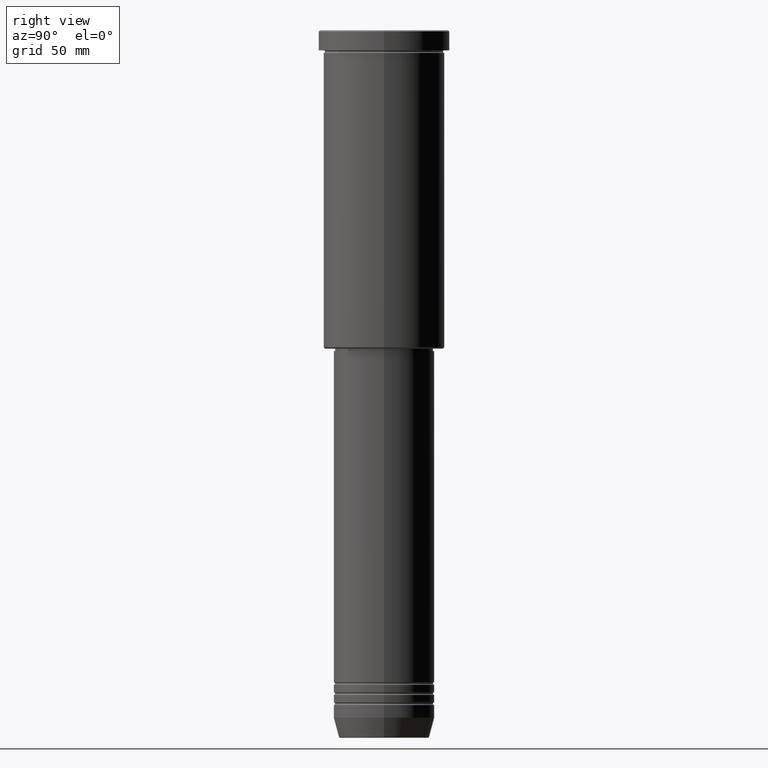
[diagram: clean part render]
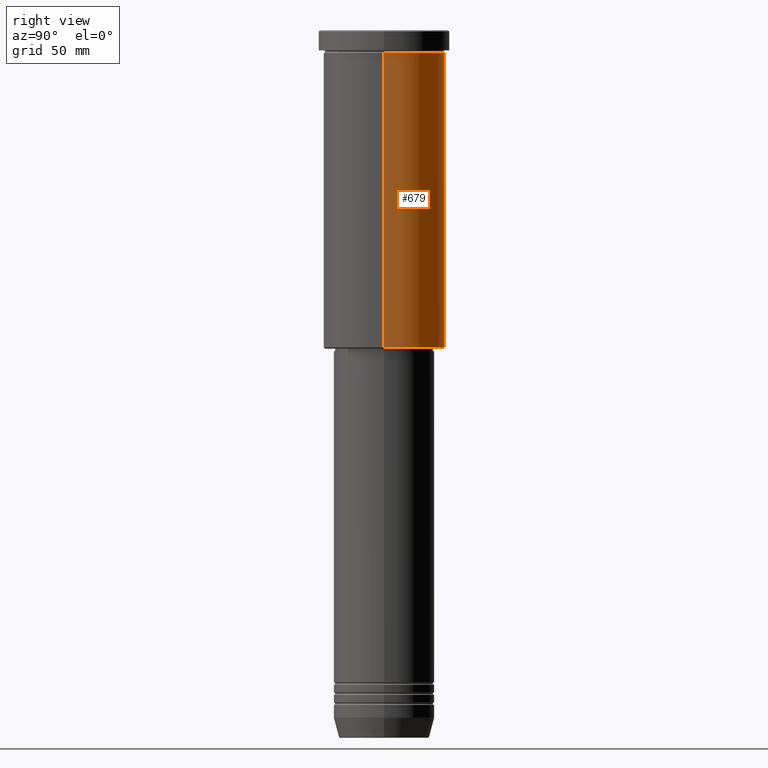
[diagram: same view with one face highlighted and labeled with its STEP entity id]
A machine part, right view. The second image highlights one B-rep face of the part: STEP entity #679.
In plain terms, the highlighted cylindrical surface (partial cylindrical patch) has radius 24 mm, axis along (-0, -0, 1).
Its self-contained STEP definition (entity closure, byte-faithful):
#1 = VERTEX_POINT ( 'NONE', #669 ) ;
#33 = CIRCLE ( 'NONE', #99, 24.00000000000000000 ) ;
#46 = EDGE_CURVE ( 'NONE', #872, #1034, #494, .T. ) ;
#82 = CARTESIAN_POINT ( 'NONE',  ( 0.000000000000000000, 0.000000000000000000, 0.000000000000000000 ) ) ;
#97 = CIRCLE ( 'NONE', #149, 24.00000000000000000 ) ;
#99 = AXIS2_PLACEMENT_3D ( 'NONE', #943, #117, #189 ) ;
#117 = DIRECTION ( 'NONE',  ( -0.000000000000000000, -0.000000000000000000, 1.000000000000000000 ) ) ;
#139 = CARTESIAN_POINT ( 'NONE',  ( 24.00000000000000000, 0.000000000000000000, -125.4999999999999147 ) ) ;
#149 = AXIS2_PLACEMENT_3D ( 'NONE', #597, #876, #766 ) ;
#181 = EDGE_CURVE ( 'NONE', #880, #872, #97, .T. ) ;
#189 = DIRECTION ( 'NONE',  ( 1.000000000000000000, 0.000000000000000000, 0.000000000000000000 ) ) ;
#221 = CARTESIAN_POINT ( 'NONE',  ( -24.00000000000000000, 2.939152317953647894E-15, -125.4999999999999147 ) ) ;
#268 = ORIENTED_EDGE ( 'NONE', *, *, #181, .T. ) ;
#299 = EDGE_CURVE ( 'NONE', #1, #1034, #33, .T. ) ;
#305 = DIRECTION ( 'NONE',  ( -0.000000000000000000, -0.000000000000000000, 1.000000000000000000 ) ) ;
#348 = VECTOR ( 'NONE', #357, 1000.000000000000000 ) ;
#357 = DIRECTION ( 'NONE',  ( -0.000000000000000000, -0.000000000000000000, 1.000000000000000000 ) ) ;
#412 = EDGE_LOOP ( 'NONE', ( #268, #463, #944, #590 ) ) ;
#463 = ORIENTED_EDGE ( 'NONE', *, *, #46, .T. ) ;
#471 = VECTOR ( 'NONE', #305, 1000.000000000000000 ) ;
#494 = LINE ( 'NONE', #568, #471 ) ;
#568 = CARTESIAN_POINT ( 'NONE',  ( -24.00000000000000000, 2.939152317953647894E-15, 0.000000000000000000 ) ) ;
#577 = EDGE_CURVE ( 'NONE', #880, #1, #716, .T. ) ;
#590 = ORIENTED_EDGE ( 'NONE', *, *, #577, .F. ) ;
#597 = CARTESIAN_POINT ( 'NONE',  ( 0.000000000000000000, 0.000000000000000000, -125.4999999999999147 ) ) ;
#669 = CARTESIAN_POINT ( 'NONE',  ( 24.00000000000000000, 0.000000000000000000, -8.999999999999994671 ) ) ;
#679 = ADVANCED_FACE ( 'NONE', ( #908 ), #742, .T. ) ;
#716 = LINE ( 'NONE', #809, #348 ) ;
#742 = CYLINDRICAL_SURFACE ( 'NONE', #1051, 24.00000000000000000 ) ;
#766 = DIRECTION ( 'NONE',  ( -1.000000000000000000, 0.000000000000000000, 0.000000000000000000 ) ) ;
#809 = CARTESIAN_POINT ( 'NONE',  ( 24.00000000000000000, 0.000000000000000000, 0.000000000000000000 ) ) ;
#821 = DIRECTION ( 'NONE',  ( -0.000000000000000000, -0.000000000000000000, 1.000000000000000000 ) ) ;
#872 = VERTEX_POINT ( 'NONE', #221 ) ;
#876 = DIRECTION ( 'NONE',  ( -0.000000000000000000, -0.000000000000000000, 1.000000000000000000 ) ) ;
#880 = VERTEX_POINT ( 'NONE', #139 ) ;
#908 = FACE_OUTER_BOUND ( 'NONE', #412, .T. ) ;
#943 = CARTESIAN_POINT ( 'NONE',  ( 0.000000000000000000, 0.000000000000000000, -8.999999999999994671 ) ) ;
#944 = ORIENTED_EDGE ( 'NONE', *, *, #299, .F. ) ;
#1034 = VERTEX_POINT ( 'NONE', #1074 ) ;
#1051 = AXIS2_PLACEMENT_3D ( 'NONE', #82, #821, #1109 ) ;
#1074 = CARTESIAN_POINT ( 'NONE',  ( -24.00000000000000000, 2.939152317953647894E-15, -8.999999999999994671 ) ) ;
#1109 = DIRECTION ( 'NONE',  ( 1.000000000000000000, 0.000000000000000000, 0.000000000000000000 ) ) ;